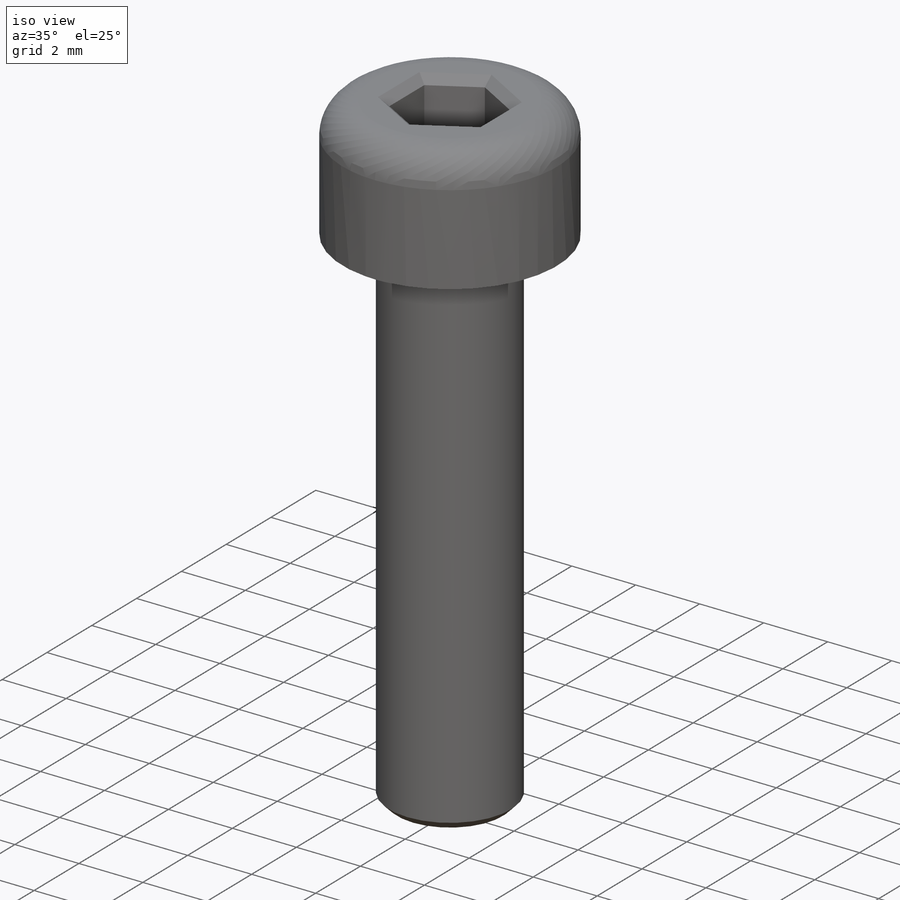
[diagram: iso view]
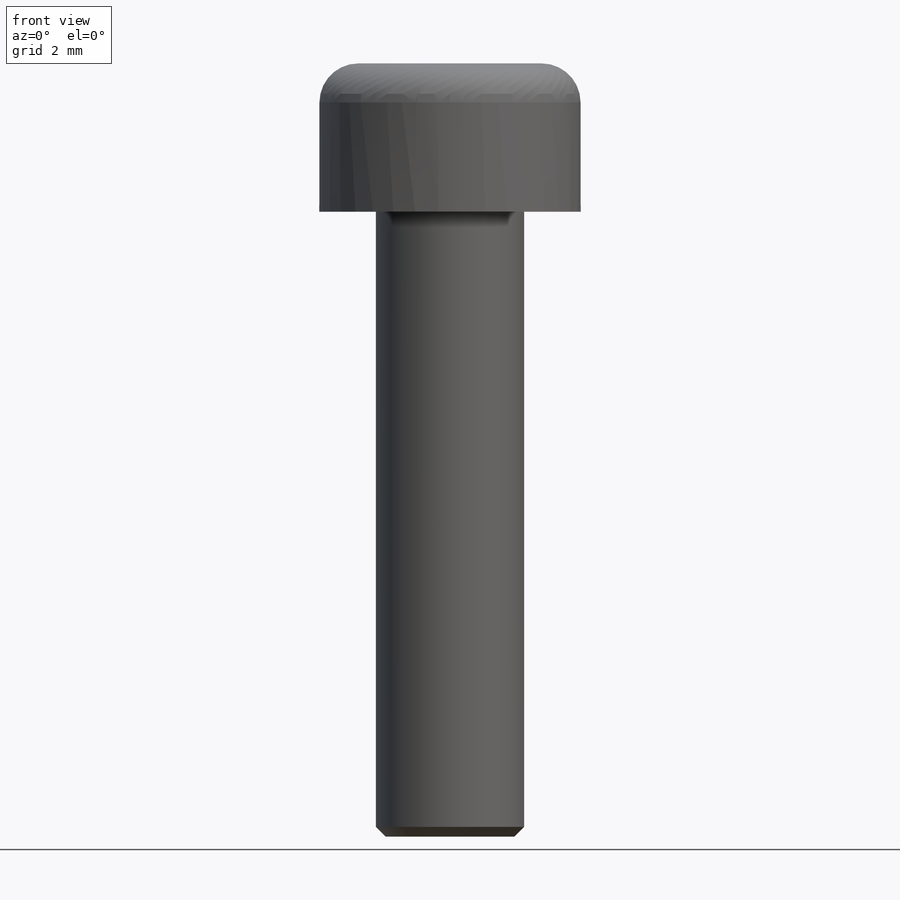
[diagram: front view]
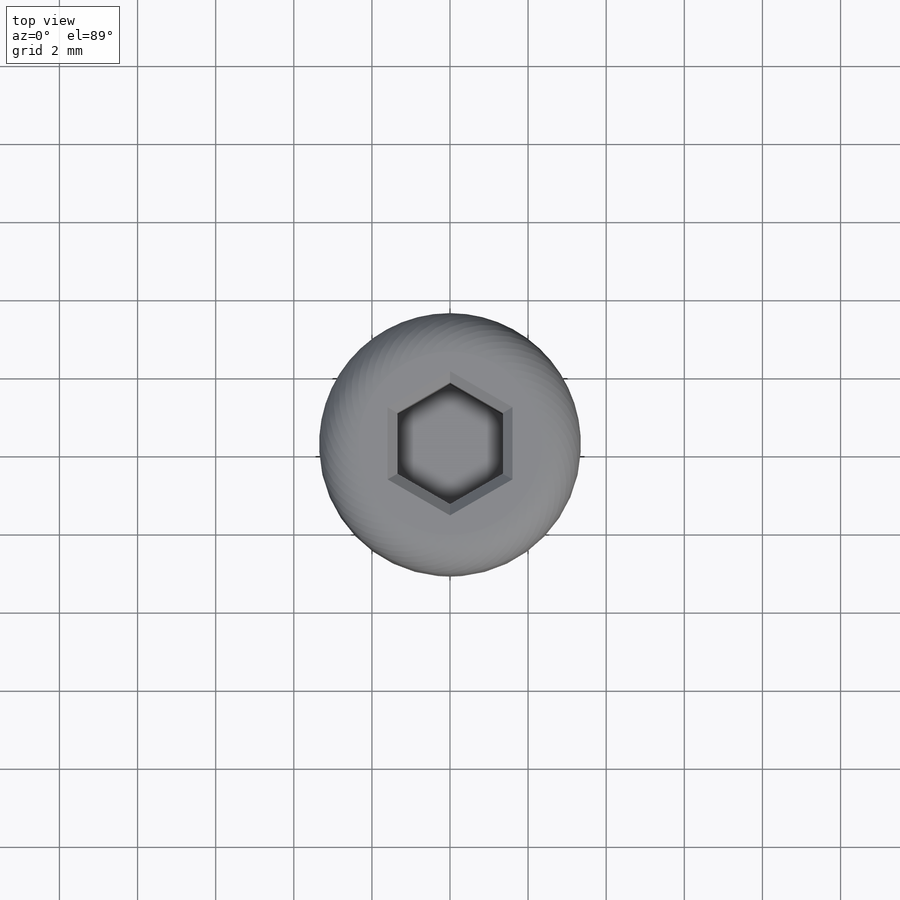
[diagram: top view]
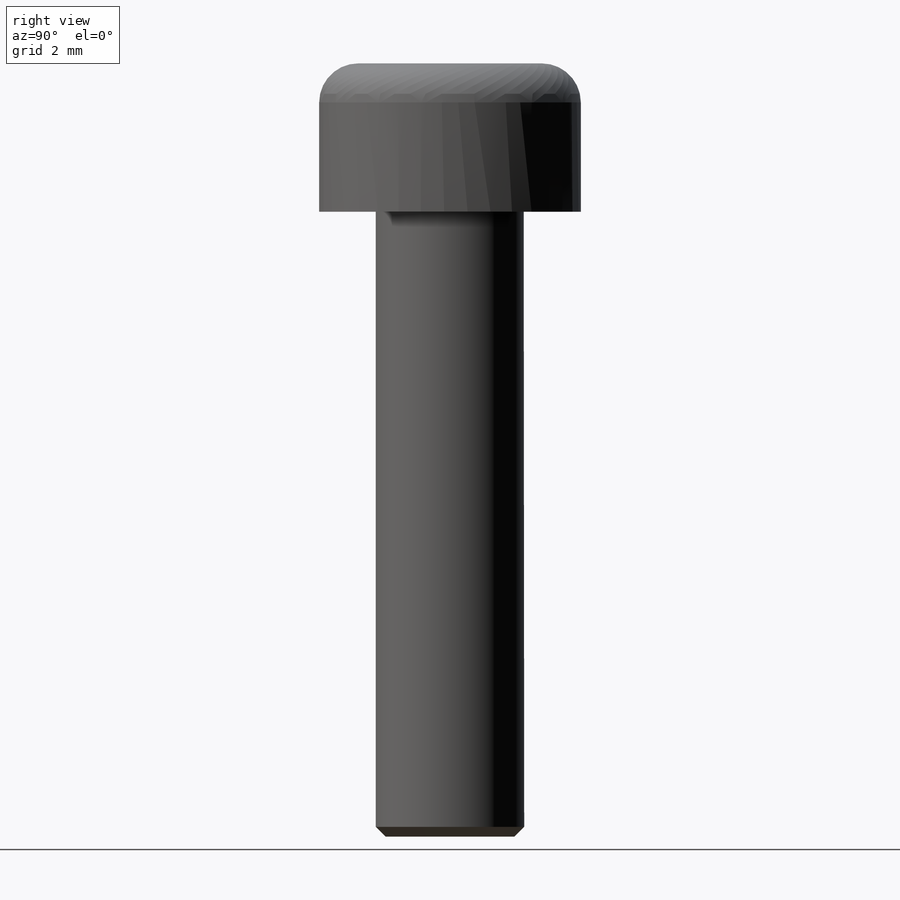
[diagram: right view]
SOLIDWORKS PART (.sldprt)
format: sldprt  version: not decoded by parser v0  size: 165,376 bytes
history: native  units: mm
features: plane x3, sketch x3, extrude x2, chamfer x2, material x1, fillet x1, cut_extrude x1 (+9 scaffold rows collapsed)
feature tree (22):
  scaffold x9  (default folders/planes/origin — collapsed)
  material  "Material <sin especificar>"
  plane  "Alzado"
  plane  "Planta"
  plane  "Vista lateral"
  sketch  "Croquis1"  dims[D1=6.7mm]
  extrude  "Saliente-Extruir1"  Depth=3.8mm
  fillet  "Redondeo1"  Radius=1mm
  sketch  "Croquis2"  dims[D1=3.8mm]
  extrude  "Saliente-Extruir2"  Depth=16mm
  sketch  "Croquis3"  dims[D1=2.7mm]
  cut_extrude  "Cortar-Extruir1"  Depth=3mm
  chamfer  "Chaflán1"  Distance=0.25mm Angle=45deg
  chamfer  "Chaflán2"  Distance=0.25mm Angle=45deg
decode coverage: 9 of 9 modeling features carry decoded parameters
note: suppression state not decoded; provenance and decode notes live in map.json
